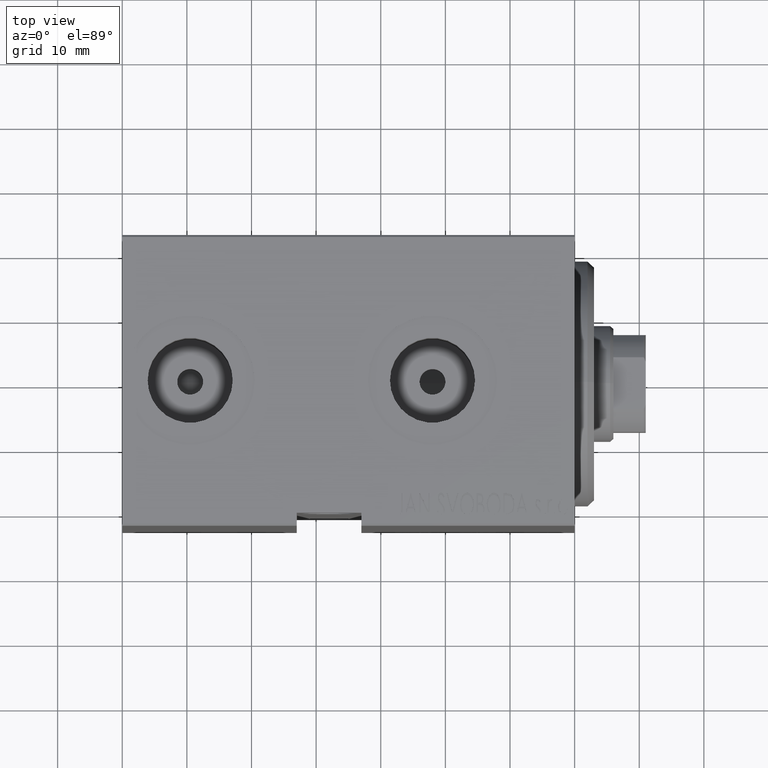
[diagram: clean part render]
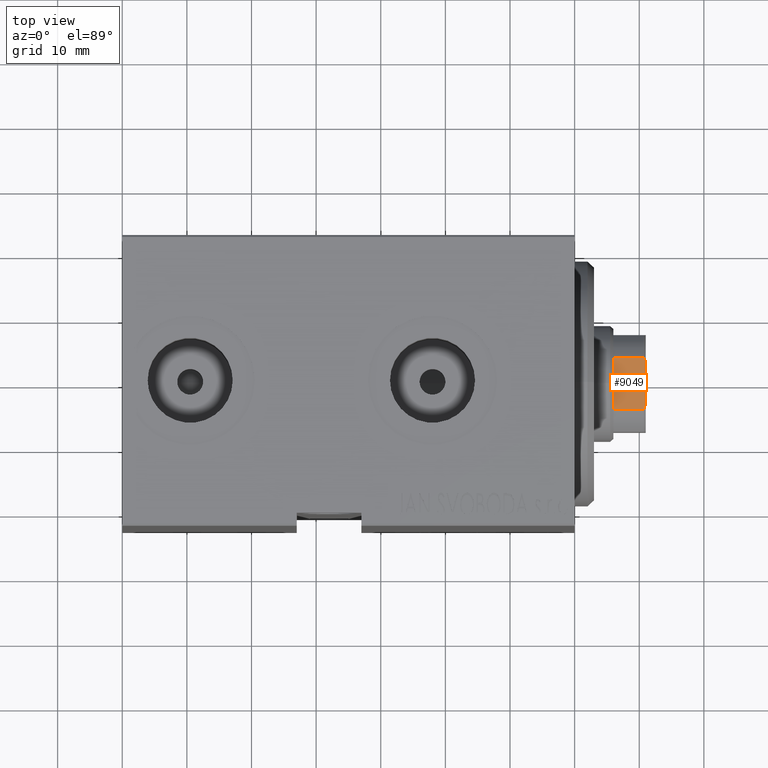
[diagram: same view with one face highlighted and labeled with its STEP entity id]
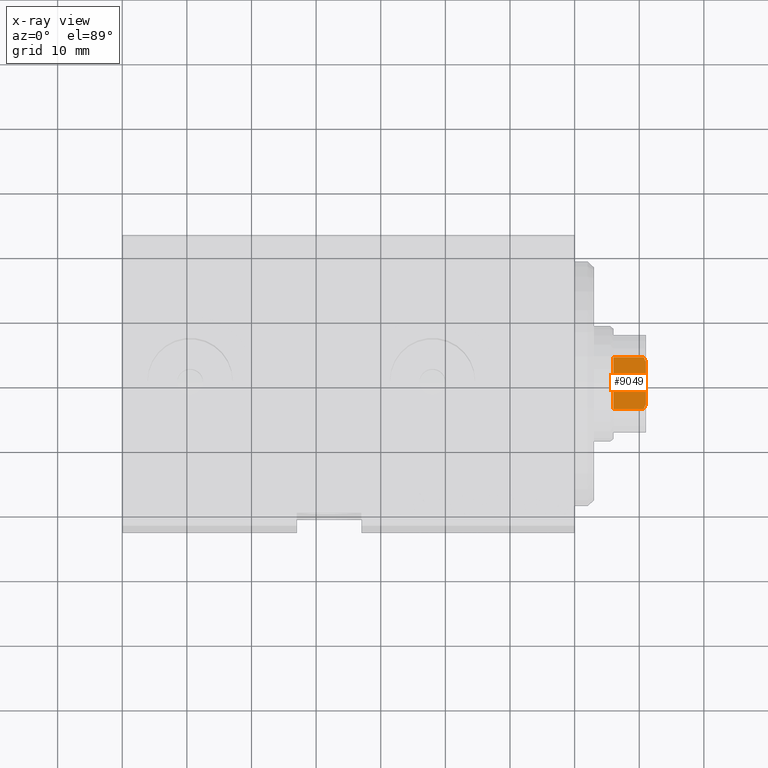
[diagram: x-ray of the same camera — body ghosted, the highlighted face saturated]
A machine part, top view. The second image highlights one B-rep face of the part: STEP entity #9049.
The next image is the same camera in x-ray: the body ghosted, the highlighted face saturated — about 0% of this face is hidden behind the body in this view.
In plain terms, the highlighted planar face has unit normal (-0, 0, -1).
Its self-contained STEP definition (entity closure, byte-faithful):
#888 = EDGE_CURVE ( 'NONE', #8144, #5935, #29185, .T. ) ;
#1457 = DIRECTION ( 'NONE',  ( -0.000000000000000000, -0.000000000000000000, 1.000000000000000000 ) ) ;
#1471 = CARTESIAN_POINT ( 'NONE',  ( -7.500000000000000000, -3.546278369582442025, 74.90654544845632756 ) ) ;
#2504 = AXIS2_PLACEMENT_3D ( 'NONE', #42234, #36150, #25756 ) ;
#3153 = EDGE_CURVE ( 'NONE', #8144, #27764, #17322, .T. ) ;
#5935 = VERTEX_POINT ( 'NONE', #12317 ) ;
#6785 = B_SPLINE_CURVE_WITH_KNOTS ( 'NONE', 3,
 ( #30388, #7798, #24086, #11274 ),
 .UNSPECIFIED., .F., .F.,
 ( 4, 4 ),
 ( 0.000000000000000000, 0.0007477064084242969868 ),
 .UNSPECIFIED. ) ;
#7569 = CARTESIAN_POINT ( 'NONE',  ( -7.499999999999999112, -3.315116890850218212, 75.00000000000001421 ) ) ;
#7798 = CARTESIAN_POINT ( 'NONE',  ( -7.500000000000000888, 3.546278369582360757, 74.90654544845624230 ) ) ;
#8144 = VERTEX_POINT ( 'NONE', #13189 ) ;
#8322 = EDGE_LOOP ( 'NONE', ( #15785, #12200, #13588, #30409, #34904, #36153 ) ) ;
#9049 = ADVANCED_FACE ( 'NONE', ( #9896 ), #32256, .F. ) ;
#9896 = FACE_OUTER_BOUND ( 'NONE', #8322, .T. ) ;
#10828 = CARTESIAN_POINT ( 'NONE',  ( -7.499999999999996447, -3.774404943294785486, 74.80616237962603066 ) ) ;
#11274 = CARTESIAN_POINT ( 'NONE',  ( -7.499999999999996447, 4.000000000000008882, 74.70000000000001705 ) ) ;
#11306 = VECTOR ( 'NONE', #24059, 1000.000000000000000 ) ;
#12020 = EDGE_CURVE ( 'NONE', #27764, #20674, #20790, .T. ) ;
#12200 = ORIENTED_EDGE ( 'NONE', *, *, #37794, .T. ) ;
#12317 = CARTESIAN_POINT ( 'NONE',  ( -7.499999999999996447, 4.000000000000008882, 74.70000000000001705 ) ) ;
#13189 = CARTESIAN_POINT ( 'NONE',  ( -7.499999999999996447, 4.000000000000011546, 70.00000000000000000 ) ) ;
#13588 = ORIENTED_EDGE ( 'NONE', *, *, #24724, .F. ) ;
#14058 = CARTESIAN_POINT ( 'NONE',  ( -7.500000000000001776, 7.500000000000001776, 70.00000000000000000 ) ) ;
#14766 = CARTESIAN_POINT ( 'NONE',  ( -7.499999999999998224, -4.000000000000007994, 70.00000000000001421 ) ) ;
#15785 = ORIENTED_EDGE ( 'NONE', *, *, #12020, .T. ) ;
#17322 = LINE ( 'NONE', #14058, #11306 ) ;
#17865 = VERTEX_POINT ( 'NONE', #18579 ) ;
#18579 = CARTESIAN_POINT ( 'NONE',  ( -7.500000000000000888, 3.315116890850160036, 75.00000000000001421 ) ) ;
#20674 = VERTEX_POINT ( 'NONE', #31668 ) ;
#20790 = LINE ( 'NONE', #37697, #40381 ) ;
#24059 = DIRECTION ( 'NONE',  ( 1.734723475976807094E-16, -1.000000000000000000, 0.000000000000000000 ) ) ;
#24086 = CARTESIAN_POINT ( 'NONE',  ( -7.500000000000000888, 3.774404943294785042, 74.80616237962603066 ) ) ;
#24724 = EDGE_CURVE ( 'NONE', #17865, #30820, #30174, .T. ) ;
#25298 = DIRECTION ( 'NONE',  ( -0.000000000000000000, -0.000000000000000000, 1.000000000000000000 ) ) ;
#25756 = DIRECTION ( 'NONE',  ( -1.734723475976807094E-16, 1.000000000000000000, 0.000000000000000000 ) ) ;
#26905 = CARTESIAN_POINT ( 'NONE',  ( -7.500000000000001776, 7.500000000000001776, 75.00000000000001421 ) ) ;
#27764 = VERTEX_POINT ( 'NONE', #14766 ) ;
#28339 = B_SPLINE_CURVE_WITH_KNOTS ( 'NONE', 3,
 ( #37075, #10828, #1471, #7569 ),
 .UNSPECIFIED., .F., .F.,
 ( 4, 4 ),
 ( 0.000000000000000000, 0.0007477064084242304167 ),
 .UNSPECIFIED. ) ;
#29185 = LINE ( 'NONE', #38302, #29304 ) ;
#29304 = VECTOR ( 'NONE', #25298, 1000.000000000000000 ) ;
#30174 = LINE ( 'NONE', #26905, #38460 ) ;
#30388 = CARTESIAN_POINT ( 'NONE',  ( -7.500000000000000888, 3.315116890850160036, 75.00000000000001421 ) ) ;
#30409 = ORIENTED_EDGE ( 'NONE', *, *, #34024, .T. ) ;
#30820 = VERTEX_POINT ( 'NONE', #31710 ) ;
#31668 = CARTESIAN_POINT ( 'NONE',  ( -7.499999999999996447, -4.000000000000007105, 74.70000000000004547 ) ) ;
#31710 = CARTESIAN_POINT ( 'NONE',  ( -7.499999999999999112, -3.315116890850218212, 75.00000000000001421 ) ) ;
#32256 = PLANE ( 'NONE',  #2504 ) ;
#33203 = DIRECTION ( 'NONE',  ( 1.734723475976807094E-16, -1.000000000000000000, 0.000000000000000000 ) ) ;
#34024 = EDGE_CURVE ( 'NONE', #17865, #5935, #6785, .T. ) ;
#34904 = ORIENTED_EDGE ( 'NONE', *, *, #888, .F. ) ;
#36150 = DIRECTION ( 'NONE',  ( 1.000000000000000000, 1.734723475976807094E-16, -0.000000000000000000 ) ) ;
#36153 = ORIENTED_EDGE ( 'NONE', *, *, #3153, .T. ) ;
#37075 = CARTESIAN_POINT ( 'NONE',  ( -7.499999999999996447, -4.000000000000007105, 74.70000000000004547 ) ) ;
#37697 = CARTESIAN_POINT ( 'NONE',  ( -7.499999999999996447, -4.000000000000007105, -0.001000000000001000089 ) ) ;
#37794 = EDGE_CURVE ( 'NONE', #20674, #30820, #28339, .T. ) ;
#38302 = CARTESIAN_POINT ( 'NONE',  ( -7.499999999999996447, 4.000000000000008882, -0.001000000000001000089 ) ) ;
#38460 = VECTOR ( 'NONE', #33203, 1000.000000000000000 ) ;
#40381 = VECTOR ( 'NONE', #1457, 1000.000000000000000 ) ;
#42234 = CARTESIAN_POINT ( 'NONE',  ( -7.500000000000001776, 7.500000000000001776, 75.00000000000001421 ) ) ;